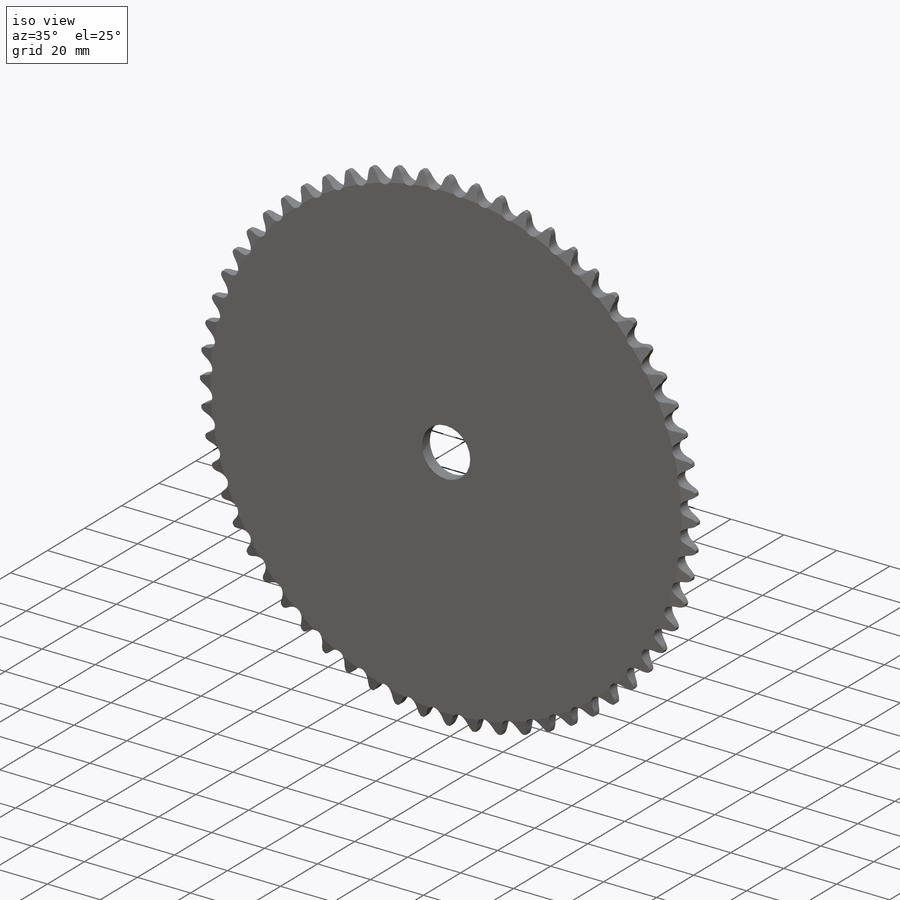
[diagram: iso view]
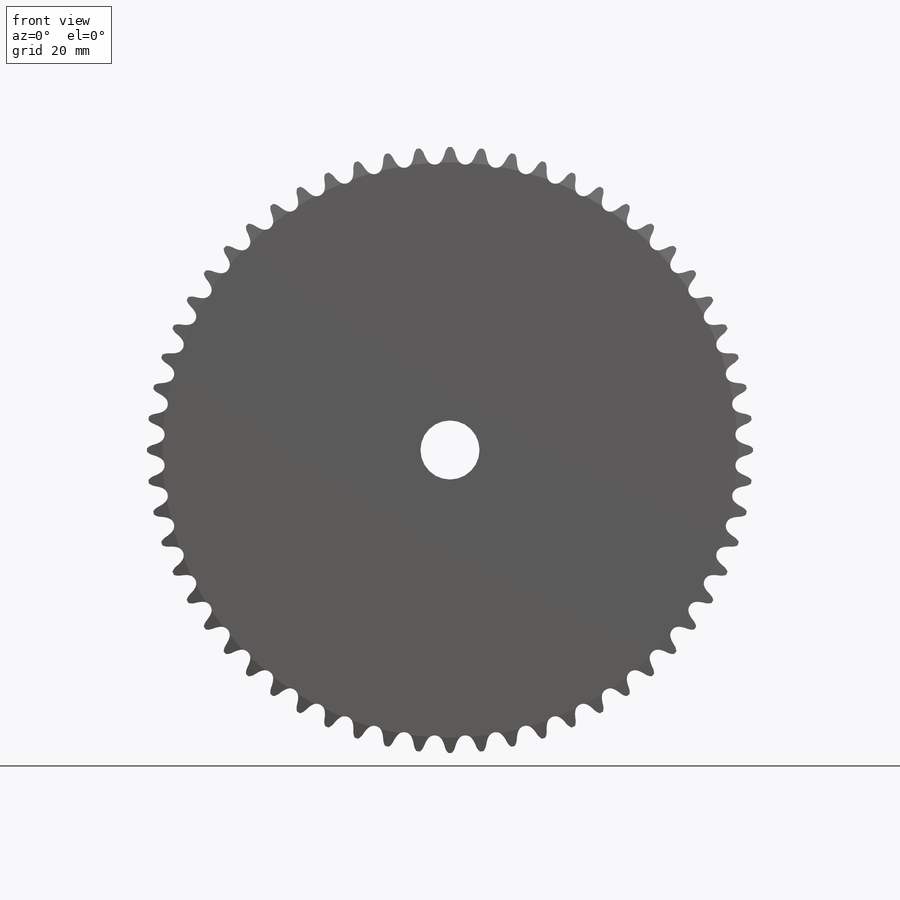
[diagram: front view]
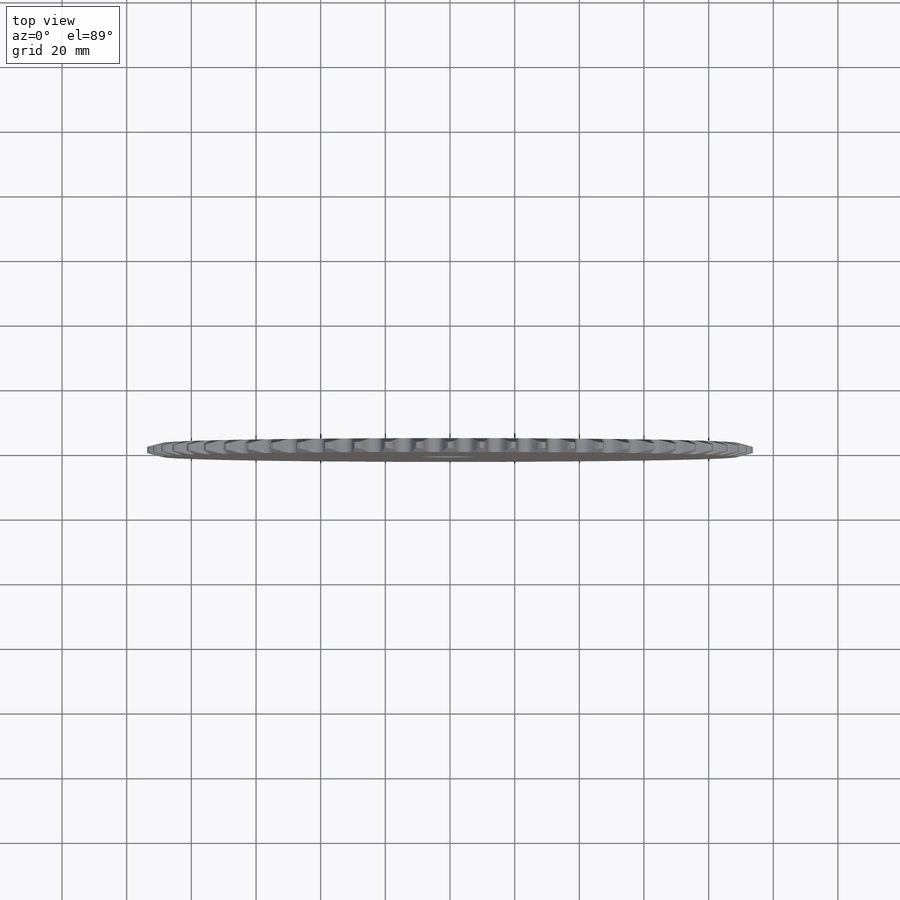
[diagram: top view]
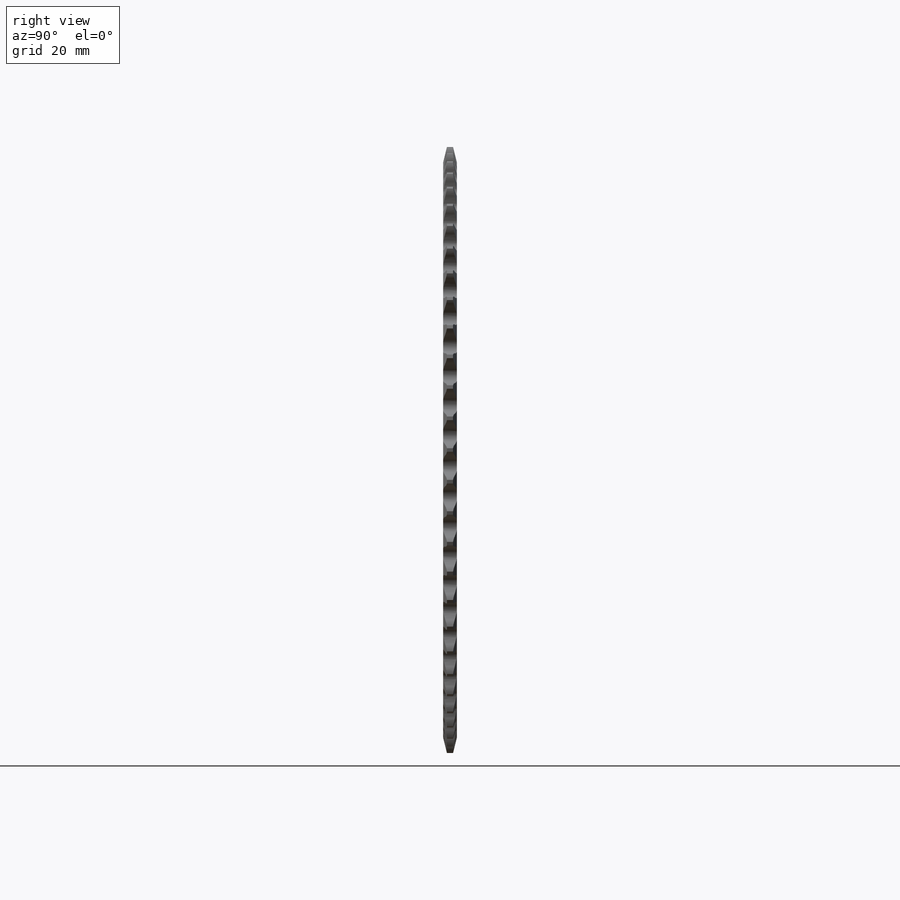
[diagram: right view]
SOLIDWORKS PART (.sldprt)
format: sldprt  version: not decoded by parser v0  size: 1,036,800 bytes
history: native  units: mm
features: sketch x4, cut_extrude x2, material x1, revolve x1, pattern_circular x1 (+15 scaffold rows collapsed)
feature tree (24):
  scaffold x15  (default folders/planes/origin — collapsed)
  material  "Material <not specified>"
  sketch  "Sketch0"  dims[c1.Dr=5.08mm c1.D1=2.5908mm c1.Ds=5.1816mm c1.OD=~43.902322mm c1.R=2.5908mm c1.Pitch=9.525mm c1.W=~4.565886mm c1.D2=~1.697355mm c1.A=36.0deg c2.D2=~20.708272mm c2.360/N=6.0deg c2.M=~2.081609mm c3.D2=~5.058114mm c4.D2=38.0deg c5.D2=~5.058114mm c5.B=20.8deg c5.E=~4.338955mm c5.ab=7.112mm c5.J=2.8575mm c5.ac=4.064mm c6.D2=~4.338955mm c6.B=~17.066667deg]
  sketch  "Sketch1"  dims[c1.rf=0.254mm c1.Bore=20.6375mm c1.OD=43.9166mm c1.t=4.2672mm c1.g=~1.190625mm c1.h=4.7625mm c1.K=18.1102mm c1.MHD=~61.428749mm c1.M=26.543mm c2.K=6.4008mm c2.M=26.543mm c2.MHD=~12.43129mm c2.Width=25.4mm c3.MHD=~58.049003mm]
  revolve  "Revolve1"  Angle=360deg
  cut_extrude  "Cut-Extrude1"  [1 undecoded]
  pattern_circular  "CirPattern1"  Count=60 Angle=360deg Teeth=60
  sketch  "Sketch2"  dims[c1.Bore=~18.25625mm c1.Hub Dia.=34.925mm c1.OD=187.452mm c2.Hub Dia.=60.325mm]
  sketch  "Sketch3"
  cut_extrude  "Cut-Extrude2"  [1 undecoded]
decode coverage: 5 of 8 modeling features carry decoded parameters
note: ~ marks probable driven/reference dimensions
note: 2 parameter values undecoded
note: suppression state not decoded; provenance and decode notes live in map.json
